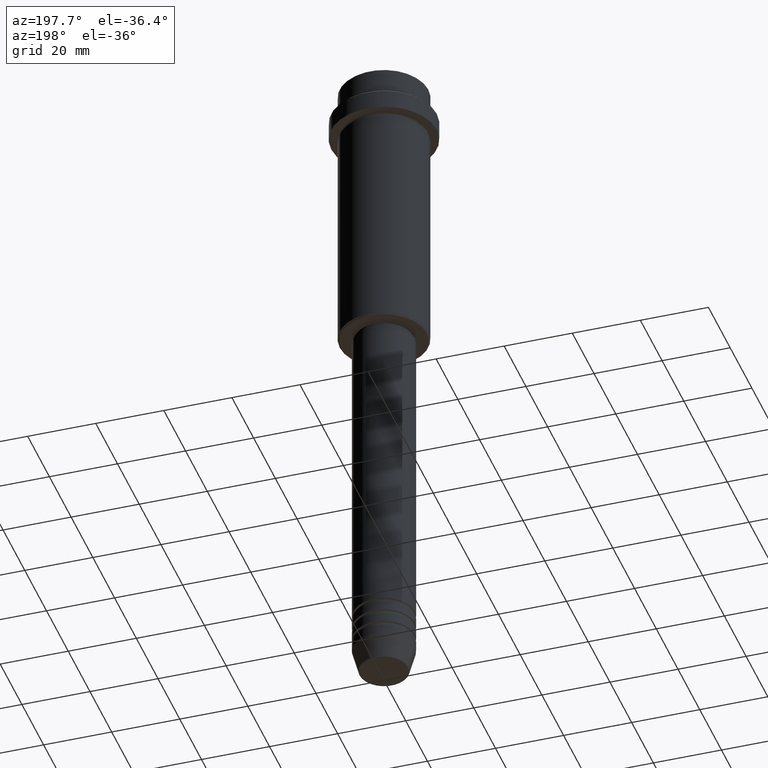
[diagram: clean part render]
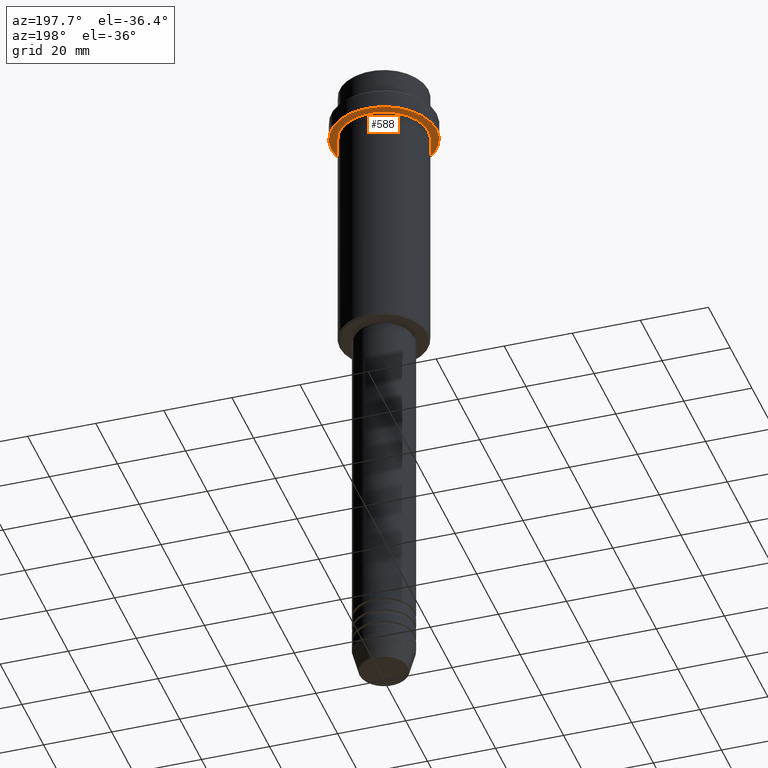
[diagram: same view with one face highlighted and labeled with its STEP entity id]
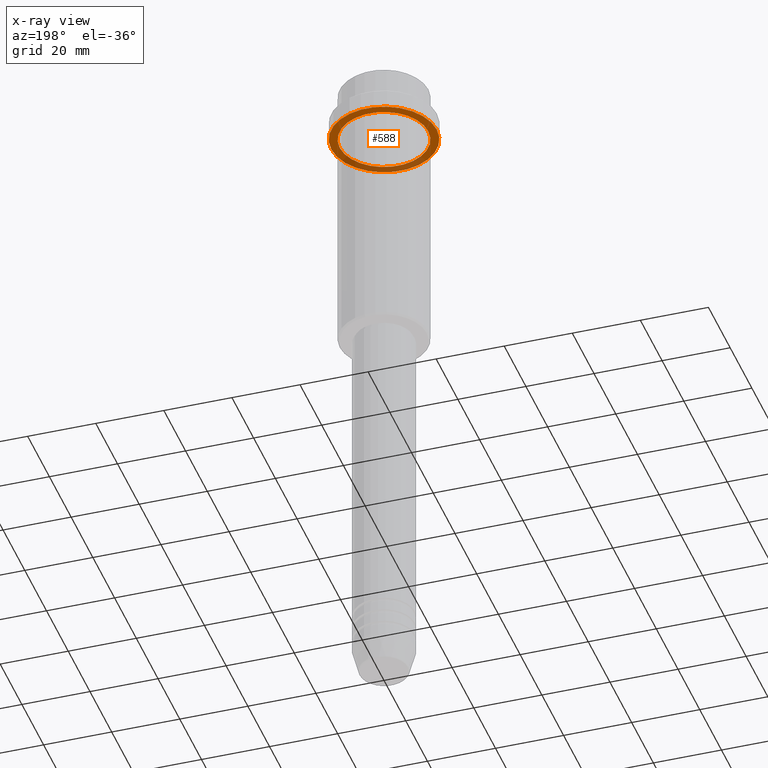
[diagram: x-ray of the same camera — body ghosted, the highlighted face saturated]
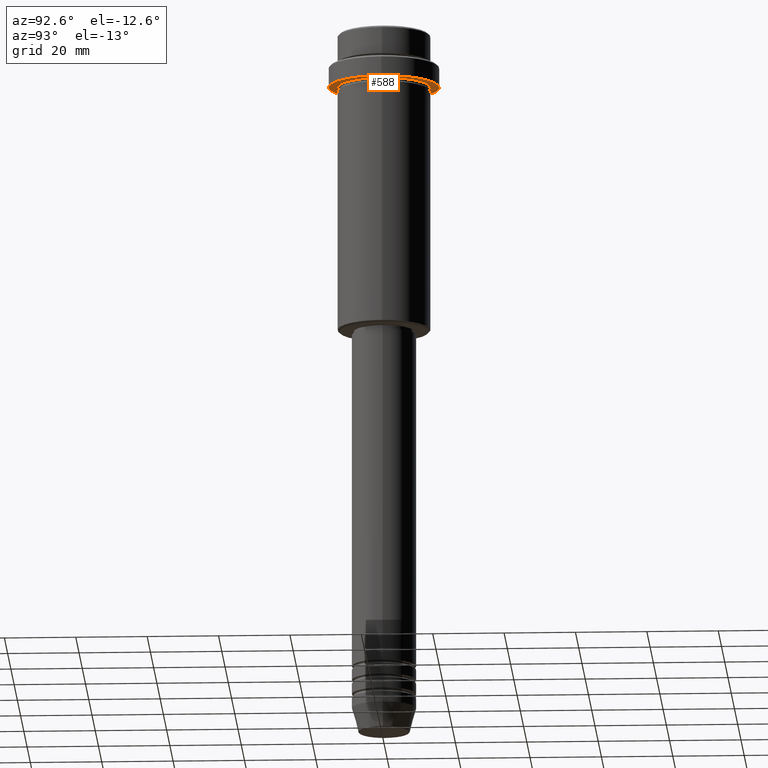
[diagram: same view with one face highlighted and labeled with its STEP entity id]
A machine part, auxiliary view. The second image highlights one B-rep face of the part: STEP entity #588.
The next image is the same camera in x-ray: the body ghosted, the highlighted face saturated — about 28% of this face is hidden behind the body in this view.
A second angle (auxiliary view) of the same face is appended — the face is thin or edge-on in the first view.
In plain terms, the highlighted planar face has unit normal (0, 0, -1).
Its self-contained STEP definition (entity closure, byte-faithful):
#27 = AXIS2_PLACEMENT_3D ( 'NONE', #41, #566, #1004 ) ;
#41 = CARTESIAN_POINT ( 'NONE',  ( 0.000000000000000000, 0.000000000000000000, -15.00000000000000178 ) ) ;
#77 = DIRECTION ( 'NONE',  ( -0.000000000000000000, -0.000000000000000000, 1.000000000000000000 ) ) ;
#92 = ORIENTED_EDGE ( 'NONE', *, *, #785, .F. ) ;
#169 = ORIENTED_EDGE ( 'NONE', *, *, #861, .F. ) ;
#183 = DIRECTION ( 'NONE',  ( 0.000000000000000000, 0.000000000000000000, -1.000000000000000000 ) ) ;
#468 = FACE_BOUND ( 'NONE', #909, .T. ) ;
#566 = DIRECTION ( 'NONE',  ( -0.000000000000000000, -0.000000000000000000, 1.000000000000000000 ) ) ;
#588 = ADVANCED_FACE ( 'NONE', ( #468, #824 ), #1070, .T. ) ;
#593 = EDGE_LOOP ( 'NONE', ( #92, #169 ) ) ;
#618 = CARTESIAN_POINT ( 'NONE',  ( -12.99999999999999467, 0.000000000000000000, -15.00000000000000000 ) ) ;
#662 = DIRECTION ( 'NONE',  ( 1.000000000000000000, 0.000000000000000000, 0.000000000000000000 ) ) ;
#671 = AXIS2_PLACEMENT_3D ( 'NONE', #944, #183, #1383 ) ;
#693 = CARTESIAN_POINT ( 'NONE',  ( 0.000000000000000000, 0.000000000000000000, -15.00000000000000000 ) ) ;
#708 = DIRECTION ( 'NONE',  ( -0.000000000000000000, -0.000000000000000000, 1.000000000000000000 ) ) ;
#737 = VERTEX_POINT ( 'NONE', #808 ) ;
#759 = CARTESIAN_POINT ( 'NONE',  ( 12.99999999999999467, 1.592040838891558504E-15, -15.00000000000000000 ) ) ;
#785 = EDGE_CURVE ( 'NONE', #1410, #737, #1244, .T. ) ;
#795 = AXIS2_PLACEMENT_3D ( 'NONE', #693, #708, #932 ) ;
#808 = CARTESIAN_POINT ( 'NONE',  ( -15.50000000000000000, 1.898202538678397557E-15, -15.00000000000000178 ) ) ;
#813 = VERTEX_POINT ( 'NONE', #618 ) ;
#824 = FACE_OUTER_BOUND ( 'NONE', #593, .T. ) ;
#845 = CARTESIAN_POINT ( 'NONE',  ( 0.000000000000000000, 0.000000000000000000, -15.00000000000000178 ) ) ;
#851 = AXIS2_PLACEMENT_3D ( 'NONE', #845, #77, #662 ) ;
#861 = EDGE_CURVE ( 'NONE', #737, #1410, #970, .T. ) ;
#883 = ORIENTED_EDGE ( 'NONE', *, *, #934, .T. ) ;
#909 = EDGE_LOOP ( 'NONE', ( #883, #1281 ) ) ;
#920 = CARTESIAN_POINT ( 'NONE',  ( 15.50000000000000000, 0.000000000000000000, -15.00000000000000178 ) ) ;
#932 = DIRECTION ( 'NONE',  ( -1.000000000000000000, 0.000000000000000000, 0.000000000000000000 ) ) ;
#934 = EDGE_CURVE ( 'NONE', #813, #941, #1156, .T. ) ;
#941 = VERTEX_POINT ( 'NONE', #759 ) ;
#944 = CARTESIAN_POINT ( 'NONE',  ( 0.000000000000000000, 15.50000000000000000, -15.00000000000000000 ) ) ;
#970 = CIRCLE ( 'NONE', #27, 15.50000000000000000 ) ;
#986 = DIRECTION ( 'NONE',  ( -0.000000000000000000, -0.000000000000000000, 1.000000000000000000 ) ) ;
#1004 = DIRECTION ( 'NONE',  ( 1.000000000000000000, 0.000000000000000000, 0.000000000000000000 ) ) ;
#1070 = PLANE ( 'NONE',  #671 ) ;
#1097 = CARTESIAN_POINT ( 'NONE',  ( 0.000000000000000000, 0.000000000000000000, -15.00000000000000000 ) ) ;
#1156 = CIRCLE ( 'NONE', #1402, 12.99999999999999467 ) ;
#1212 = EDGE_CURVE ( 'NONE', #941, #813, #1222, .T. ) ;
#1222 = CIRCLE ( 'NONE', #795, 12.99999999999999467 ) ;
#1244 = CIRCLE ( 'NONE', #851, 15.50000000000000000 ) ;
#1281 = ORIENTED_EDGE ( 'NONE', *, *, #1212, .T. ) ;
#1383 = DIRECTION ( 'NONE',  ( -1.000000000000000000, 0.000000000000000000, -0.000000000000000000 ) ) ;
#1402 = AXIS2_PLACEMENT_3D ( 'NONE', #1097, #986, #1415 ) ;
#1410 = VERTEX_POINT ( 'NONE', #920 ) ;
#1415 = DIRECTION ( 'NONE',  ( -1.000000000000000000, 0.000000000000000000, 0.000000000000000000 ) ) ;